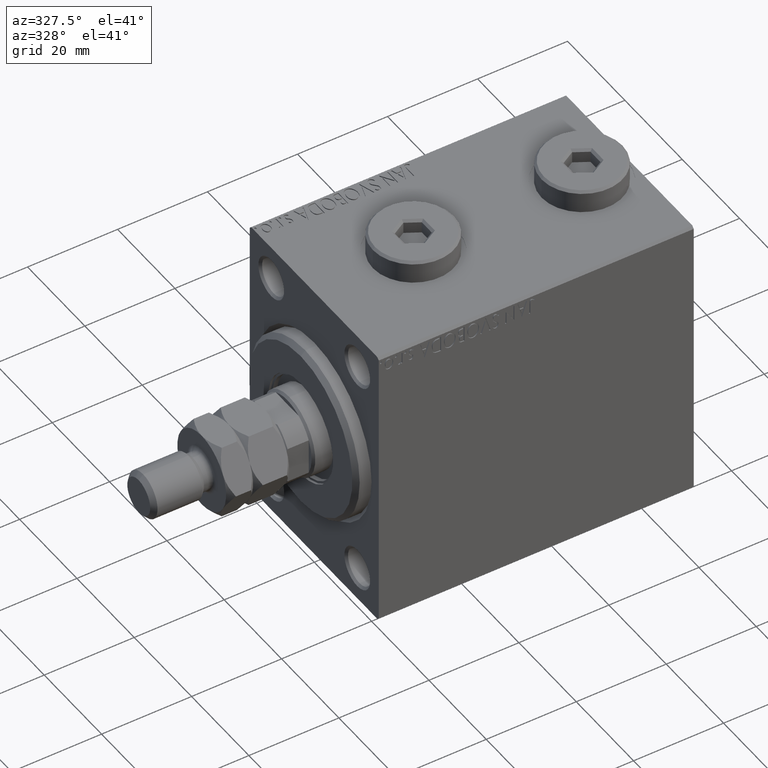
[diagram: clean part render]
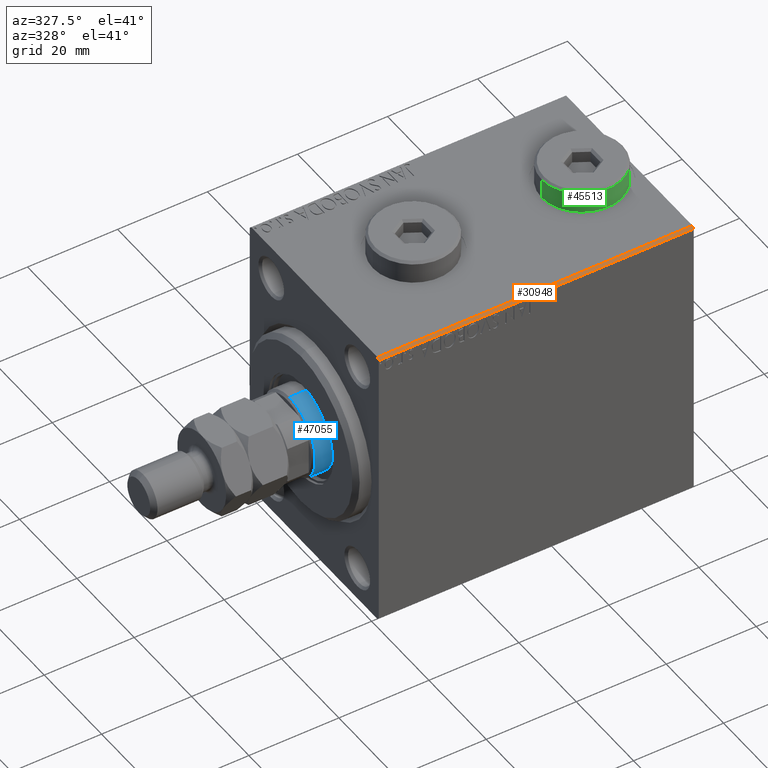
[diagram: same view with three faces highlighted in distinct colors, each labeled with its STEP entity id]
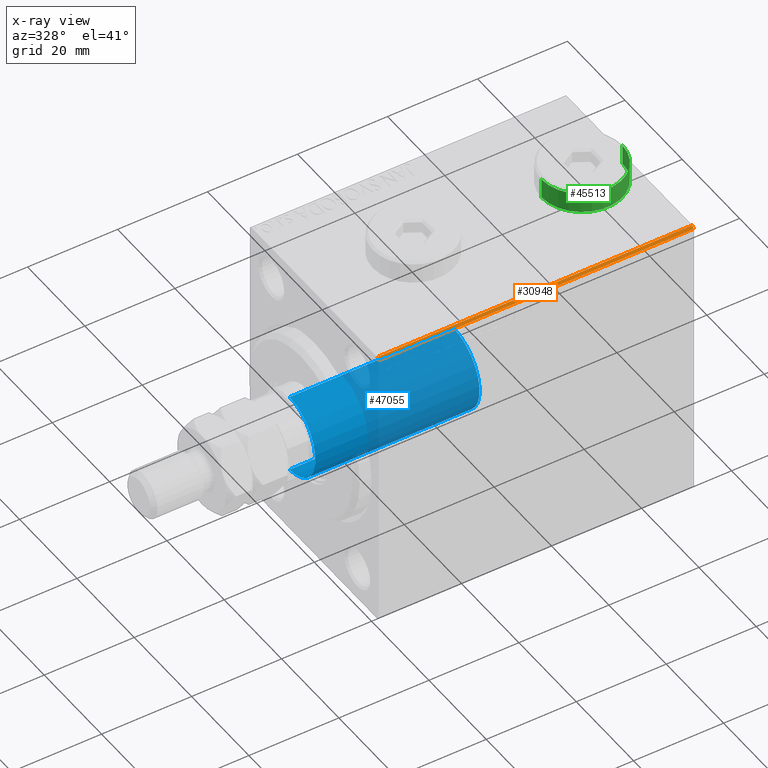
[diagram: x-ray of the same camera — body ghosted, the three highlighted faces saturated]
A machine part, auxiliary view with three faces highlighted in distinct colors.
The next image is the same camera in x-ray (body ghosted, the three faces saturated) — at least one of them is partly hidden behind the body in this view.
Their STEP definitions:

[orange] entity #30948 — the highlighted planar face has unit normal (0, 0.7071, -0.7071).
#1005 = LINE ( 'NONE', #40830, #25685 ) ;
#4176 = VECTOR ( 'NONE', #12617, 1000.000000000000000 ) ;
#4315 = ORIENTED_EDGE ( 'NONE', *, *, #24533, .F. ) ;
#5912 = VECTOR ( 'NONE', #7880, 1000.000000000000114 ) ;
#6001 = VERTEX_POINT ( 'NONE', #43531 ) ;
#6346 = CARTESIAN_POINT ( 'NONE',  ( 70.00000000000000000, -21.99999999999997868, 32.49999999999998579 ) ) ;
#6735 = ORIENTED_EDGE ( 'NONE', *, *, #9405, .F. ) ;
#6827 = CARTESIAN_POINT ( 'NONE',  ( 70.00000000000000000, -22.49999999999999289, 31.99999999999998579 ) ) ;
#7880 = DIRECTION ( 'NONE',  ( -0.000000000000000000, 0.7071067811865474617, 0.7071067811865474617 ) ) ;
#9039 = LINE ( 'NONE', #16438, #4176 ) ;
#9405 = EDGE_CURVE ( 'NONE', #45258, #6001, #40917, .T. ) ;
#11696 = CARTESIAN_POINT ( 'NONE',  ( 0.000000000000000000, -22.49999999999999289, 31.99999999999998579 ) ) ;
#12456 = ORIENTED_EDGE ( 'NONE', *, *, #18610, .F. ) ;
#12536 = EDGE_LOOP ( 'NONE', ( #4315, #12456, #41961, #6735 ) ) ;
#12617 = DIRECTION ( 'NONE',  ( 1.000000000000000000, 0.000000000000000000, 0.000000000000000000 ) ) ;
#12930 = CARTESIAN_POINT ( 'NONE',  ( 70.00000000000000000, -22.49999999999999289, 31.99999999999998579 ) ) ;
#14957 = CARTESIAN_POINT ( 'NONE',  ( 70.00000000000000000, -22.49999999999999289, 31.99999999999998579 ) ) ;
#15279 = LINE ( 'NONE', #11696, #5912 ) ;
#15830 = DIRECTION ( 'NONE',  ( 0.000000000000000000, -0.7071067811865474617, -0.7071067811865474617 ) ) ;
#16438 = CARTESIAN_POINT ( 'NONE',  ( 70.00000000000000000, -21.99999999999999289, 32.49999999999998579 ) ) ;
#17336 = VECTOR ( 'NONE', #29270, 1000.000000000000000 ) ;
#18610 = EDGE_CURVE ( 'NONE', #24253, #34235, #9039, .T. ) ;
#24253 = VERTEX_POINT ( 'NONE', #31354 ) ;
#24495 = FACE_OUTER_BOUND ( 'NONE', #12536, .T. ) ;
#24533 = EDGE_CURVE ( 'NONE', #34235, #45258, #1005, .T. ) ;
#25685 = VECTOR ( 'NONE', #15830, 1000.000000000000114 ) ;
#28998 = EDGE_CURVE ( 'NONE', #6001, #24253, #15279, .T. ) ;
#29270 = DIRECTION ( 'NONE',  ( -1.000000000000000000, 0.000000000000000000, 0.000000000000000000 ) ) ;
#29597 = AXIS2_PLACEMENT_3D ( 'NONE', #6827, #31874, #46397 ) ;
#30948 = ADVANCED_FACE ( 'NONE', ( #24495 ), #39475, .F. ) ;
#31354 = CARTESIAN_POINT ( 'NONE',  ( 0.000000000000000000, -21.99999999999997868, 32.49999999999998579 ) ) ;
#31874 = DIRECTION ( 'NONE',  ( 0.000000000000000000, 0.7071067811865475727, -0.7071067811865475727 ) ) ;
#34235 = VERTEX_POINT ( 'NONE', #6346 ) ;
#39475 = PLANE ( 'NONE',  #29597 ) ;
#40830 = CARTESIAN_POINT ( 'NONE',  ( 70.00000000000000000, -27.24999999999998934, 27.24999999999998934 ) ) ;
#40917 = LINE ( 'NONE', #14957, #17336 ) ;
#41961 = ORIENTED_EDGE ( 'NONE', *, *, #28998, .F. ) ;
#43531 = CARTESIAN_POINT ( 'NONE',  ( 0.000000000000000000, -22.49999999999999289, 31.99999999999998579 ) ) ;
#45258 = VERTEX_POINT ( 'NONE', #12930 ) ;
#46397 = DIRECTION ( 'NONE',  ( -1.000000000000000000, 0.000000000000000000, 0.000000000000000000 ) ) ;

[blue] entity #47055 — the highlighted cylindrical surface (partial cylindrical patch) has radius 9 mm, axis along (1, -0, -0).
#1180 = CYLINDRICAL_SURFACE ( 'NONE', #7080, 9.000000000000000000 ) ;
#1593 = ORIENTED_EDGE ( 'NONE', *, *, #18548, .T. ) ;
#3632 = CARTESIAN_POINT ( 'NONE',  ( 9.000000000000000000, 1.102182119232617714E-15, 33.00000000000000000 ) ) ;
#3858 = CARTESIAN_POINT ( 'NONE',  ( 0.000000000000000000, 0.000000000000000000, 69.50000000000000000 ) ) ;
#4786 = VECTOR ( 'NONE', #17694, 1000.000000000000000 ) ;
#4942 = VECTOR ( 'NONE', #42665, 1000.000000000000000 ) ;
#6086 = ORIENTED_EDGE ( 'NONE', *, *, #46938, .F. ) ;
#7080 = AXIS2_PLACEMENT_3D ( 'NONE', #19834, #45776, #27675 ) ;
#7227 = DIRECTION ( 'NONE',  ( 1.000000000000000000, 0.000000000000000000, 0.000000000000000000 ) ) ;
#10059 = CARTESIAN_POINT ( 'NONE',  ( 9.000000000000000000, 1.102182119232617714E-15, 70.00000000000000000 ) ) ;
#13953 = VERTEX_POINT ( 'NONE', #37738 ) ;
#14109 = VERTEX_POINT ( 'NONE', #41431 ) ;
#16157 = EDGE_CURVE ( 'NONE', #14109, #17204, #19056, .T. ) ;
#17204 = VERTEX_POINT ( 'NONE', #42239 ) ;
#17694 = DIRECTION ( 'NONE',  ( -0.000000000000000000, -0.000000000000000000, -1.000000000000000000 ) ) ;
#18548 = EDGE_CURVE ( 'NONE', #17204, #13953, #27683, .T. ) ;
#19056 = CIRCLE ( 'NONE', #38114, 9.000000000000000000 ) ;
#19834 = CARTESIAN_POINT ( 'NONE',  ( 0.000000000000000000, 0.000000000000000000, 70.00000000000000000 ) ) ;
#22305 = AXIS2_PLACEMENT_3D ( 'NONE', #32055, #47030, #7227 ) ;
#23151 = FACE_OUTER_BOUND ( 'NONE', #34850, .T. ) ;
#25128 = DIRECTION ( 'NONE',  ( 0.000000000000000000, 0.000000000000000000, -1.000000000000000000 ) ) ;
#27675 = DIRECTION ( 'NONE',  ( -1.000000000000000000, 0.000000000000000000, 0.000000000000000000 ) ) ;
#27683 = LINE ( 'NONE', #27910, #4942 ) ;
#27910 = CARTESIAN_POINT ( 'NONE',  ( -9.000000000000000000, 0.000000000000000000, 70.00000000000000000 ) ) ;
#29514 = VERTEX_POINT ( 'NONE', #3632 ) ;
#32055 = CARTESIAN_POINT ( 'NONE',  ( 0.000000000000000000, 0.000000000000000000, 33.00000000000000000 ) ) ;
#32458 = LINE ( 'NONE', #10059, #4786 ) ;
#32941 = CIRCLE ( 'NONE', #22305, 9.000000000000000000 ) ;
#34850 = EDGE_LOOP ( 'NONE', ( #6086, #36610, #1593, #39259 ) ) ;
#36610 = ORIENTED_EDGE ( 'NONE', *, *, #16157, .T. ) ;
#37738 = CARTESIAN_POINT ( 'NONE',  ( -9.000000000000000000, 0.000000000000000000, 33.00000000000000000 ) ) ;
#38114 = AXIS2_PLACEMENT_3D ( 'NONE', #3858, #25128, #43456 ) ;
#39259 = ORIENTED_EDGE ( 'NONE', *, *, #46528, .T. ) ;
#41431 = CARTESIAN_POINT ( 'NONE',  ( 9.000000000000000000, 1.102182119232617714E-15, 69.50000000000000000 ) ) ;
#42239 = CARTESIAN_POINT ( 'NONE',  ( -9.000000000000000000, 0.000000000000000000, 69.50000000000000000 ) ) ;
#42665 = DIRECTION ( 'NONE',  ( -0.000000000000000000, -0.000000000000000000, -1.000000000000000000 ) ) ;
#43456 = DIRECTION ( 'NONE',  ( 1.000000000000000000, 0.000000000000000000, 0.000000000000000000 ) ) ;
#45776 = DIRECTION ( 'NONE',  ( -0.000000000000000000, -0.000000000000000000, -1.000000000000000000 ) ) ;
#46528 = EDGE_CURVE ( 'NONE', #13953, #29514, #32941, .T. ) ;
#46938 = EDGE_CURVE ( 'NONE', #14109, #29514, #32458, .T. ) ;
#47030 = DIRECTION ( 'NONE',  ( 0.000000000000000000, 0.000000000000000000, 1.000000000000000000 ) ) ;
#47055 = ADVANCED_FACE ( 'NONE', ( #23151 ), #1180, .T. ) ;

[green] entity #45513 — the highlighted cylindrical surface (partial cylindrical patch) has radius 9 mm, axis along (-0, -0, -1).
#200 = DIRECTION ( 'NONE',  ( 1.000000000000000000, 0.000000000000000000, 0.000000000000000000 ) ) ;
#341 = DIRECTION ( 'NONE',  ( 1.000000000000000000, 0.000000000000000000, 0.000000000000000000 ) ) ;
#593 = EDGE_CURVE ( 'NONE', #44800, #6693, #39226, .T. ) ;
#1085 = VECTOR ( 'NONE', #42530, 1000.000000000000000 ) ;
#6693 = VERTEX_POINT ( 'NONE', #15293 ) ;
#7753 = ORIENTED_EDGE ( 'NONE', *, *, #41469, .T. ) ;
#7754 = DIRECTION ( 'NONE',  ( 0.000000000000000000, 0.000000000000000000, 1.000000000000000000 ) ) ;
#9883 = VERTEX_POINT ( 'NONE', #46554 ) ;
#10785 = CARTESIAN_POINT ( 'NONE',  ( 9.000000000000001776, 1.102182119232617911E-15, 0.000000000000000000 ) ) ;
#12149 = DIRECTION ( 'NONE',  ( -0.000000000000000000, -0.000000000000000000, -1.000000000000000000 ) ) ;
#12376 = AXIS2_PLACEMENT_3D ( 'NONE', #15976, #12149, #37646 ) ;
#13176 = LINE ( 'NONE', #42229, #35690 ) ;
#13402 = DIRECTION ( 'NONE',  ( -0.000000000000000000, -0.000000000000000000, -1.000000000000000000 ) ) ;
#14799 = ORIENTED_EDGE ( 'NONE', *, *, #30671, .T. ) ;
#15165 = VERTEX_POINT ( 'NONE', #10785 ) ;
#15293 = CARTESIAN_POINT ( 'NONE',  ( -9.000000000000001776, 0.000000000000000000, 4.500000000000006217 ) ) ;
#15976 = CARTESIAN_POINT ( 'NONE',  ( 0.000000000000000000, 0.000000000000000000, 5.000000000000000000 ) ) ;
#16907 = EDGE_CURVE ( 'NONE', #44800, #15165, #42297, .T. ) ;
#19071 = DIRECTION ( 'NONE',  ( 0.000000000000000000, 0.000000000000000000, -1.000000000000000000 ) ) ;
#20495 = CARTESIAN_POINT ( 'NONE',  ( 9.000000000000001776, 1.102182119232617911E-15, 4.500000000000006217 ) ) ;
#21597 = EDGE_LOOP ( 'NONE', ( #36397, #43853, #14799, #7753 ) ) ;
#23362 = CYLINDRICAL_SURFACE ( 'NONE', #12376, 9.000000000000001776 ) ;
#25137 = CARTESIAN_POINT ( 'NONE',  ( 9.000000000000001776, 1.102182119232617911E-15, 5.000000000000000000 ) ) ;
#30671 = EDGE_CURVE ( 'NONE', #6693, #9883, #13176, .T. ) ;
#32888 = CIRCLE ( 'NONE', #45067, 9.000000000000001776 ) ;
#33121 = CARTESIAN_POINT ( 'NONE',  ( 0.000000000000000000, 0.000000000000000000, 4.500000000000006217 ) ) ;
#35690 = VECTOR ( 'NONE', #13402, 1000.000000000000000 ) ;
#36397 = ORIENTED_EDGE ( 'NONE', *, *, #16907, .F. ) ;
#37646 = DIRECTION ( 'NONE',  ( -1.000000000000000000, 0.000000000000000000, 0.000000000000000000 ) ) ;
#39226 = CIRCLE ( 'NONE', #40654, 9.000000000000001776 ) ;
#40165 = CARTESIAN_POINT ( 'NONE',  ( 0.000000000000000000, 0.000000000000000000, 0.000000000000000000 ) ) ;
#40654 = AXIS2_PLACEMENT_3D ( 'NONE', #33121, #19071, #200 ) ;
#41469 = EDGE_CURVE ( 'NONE', #9883, #15165, #32888, .T. ) ;
#42229 = CARTESIAN_POINT ( 'NONE',  ( -9.000000000000001776, 0.000000000000000000, 5.000000000000000000 ) ) ;
#42297 = LINE ( 'NONE', #25137, #1085 ) ;
#42530 = DIRECTION ( 'NONE',  ( -0.000000000000000000, -0.000000000000000000, -1.000000000000000000 ) ) ;
#43853 = ORIENTED_EDGE ( 'NONE', *, *, #593, .T. ) ;
#44784 = FACE_OUTER_BOUND ( 'NONE', #21597, .T. ) ;
#44800 = VERTEX_POINT ( 'NONE', #20495 ) ;
#45067 = AXIS2_PLACEMENT_3D ( 'NONE', #40165, #7754, #341 ) ;
#45513 = ADVANCED_FACE ( 'NONE', ( #44784 ), #23362, .T. ) ;
#46554 = CARTESIAN_POINT ( 'NONE',  ( -9.000000000000001776, 0.000000000000000000, 0.000000000000000000 ) ) ;